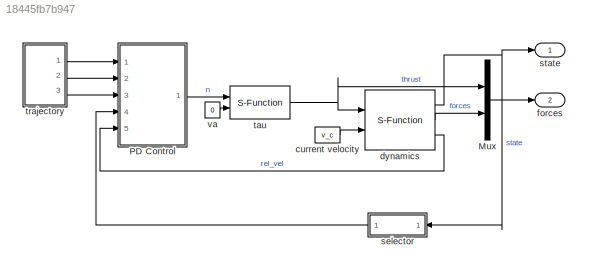
MODEL slx_18445fb7b947
KIND model
CONFIG AbsTol = auto
CONFIG EnableMultiTasking = off
CONFIG FixedStep = mdl.tStep
CONFIG MaxStep = auto
CONFIG MinStep = auto
CONFIG RelTol = 1e-3
CONFIG SampleTimeConstraint = Unconstrained
CONFIG Solver = ode4
CONFIG SolverName = ode4
CONFIG StartTime = 0.0
CONFIG StopTime = 10.0
BLOCK [Mux] Mux
  DisplayOption = bar
  Inputs = [6,18]
  Ports = [2, 1]
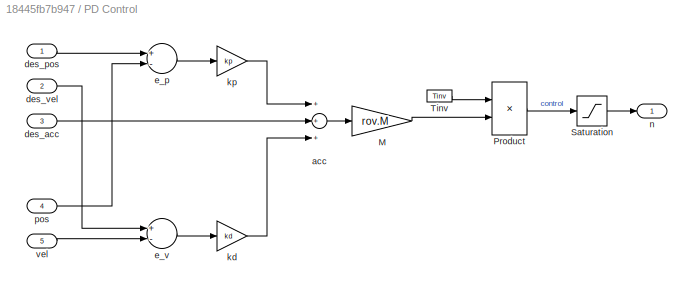
BLOCK [SubSystem] PD Control
  Ports = [5, 1]
  RequestExecContextInheritance = off
  Variant = off
BLOCK [Gain] PD Control/M
  Gain = rov.M
  Multiplication = Matrix(K*u)
  OutDataTypeStr = Inherit: Inherit via internal rule
  ParamDataTypeStr = Inherit: Inherit via internal rule
  SaturateOnIntegerOverflow = off
BLOCK [Product] PD Control/Product
  InputSameDT = off
  Multiplication = Matrix(*)
  OutDataTypeStr = Inherit: Inherit via internal rule
  Ports = [2, 1]
  RndMeth = Floor
  SaturateOnIntegerOverflow = off
BLOCK [Saturate] PD Control/Saturation
  InputPortMap = u0
  LowerLimit = -n_max
  Ports = [1, 1]
  UpperLimit = n_max
BLOCK [Constant] PD Control/Tinv
  Value = Tinv
  VectorParams1D = off
BLOCK [Sum] PD Control/acc
  InputSameDT = off
  Inputs = +++
  OutDataTypeStr = Inherit: Inherit via internal rule
  Ports = [3, 1]
  SaturateOnIntegerOverflow = off
BLOCK [Inport] PD Control/des_acc
  IconDisplay = Port number
  Port = 3
BLOCK [Inport] PD Control/des_pos
  IconDisplay = Port number
BLOCK [Inport] PD Control/des_vel
  IconDisplay = Port number
  Port = 2
BLOCK [Sum] PD Control/e_p
  InputSameDT = off
  Inputs = +-
  OutDataTypeStr = Inherit: Inherit via internal rule
  Ports = [2, 1]
  SaturateOnIntegerOverflow = off
BLOCK [Sum] PD Control/e_v
  InputSameDT = off
  Inputs = +-
  OutDataTypeStr = Inherit: Inherit via internal rule
  Ports = [2, 1]
  SaturateOnIntegerOverflow = off
BLOCK [Gain] PD Control/kd
  Gain = kd
  OutDataTypeStr = Inherit: Inherit via internal rule
  ParamDataTypeStr = Inherit: Inherit via internal rule
  SaturateOnIntegerOverflow = off
BLOCK [Gain] PD Control/kp
  Gain = kp
  OutDataTypeStr = Inherit: Inherit via internal rule
  ParamDataTypeStr = Inherit: Inherit via internal rule
  SaturateOnIntegerOverflow = off
BLOCK [Outport] PD Control/n
  IconDisplay = Port number
BLOCK [Inport] PD Control/pos
  IconDisplay = Port number
  Port = 4
BLOCK [Inport] PD Control/vel
  IconDisplay = Port number
  Port = 5
BLOCK [Constant] current velocity
  Value = v_c
BLOCK [S-Function] dynamics
  EnableBusSupport = off
  FunctionName = uuv_dynamics
  Parameters = rov.weight,rov.buoyancy,rov.G,rov.B,ics,rov.inv_mass',rov.M_A',rov.M_RB',rov.D_L',rov.D_q'
  Ports = [2, 3]
  SFcnIsStateOwnerBlock = off
  SFunctionDeploymentMode = off
BLOCK [Outport] forces
  IconDisplay = Port number
  Port = 2
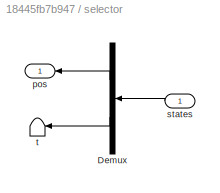
BLOCK [SubSystem] selector
  Ports = [1, 1]
  RequestExecContextInheritance = off
  Variant = off
BLOCK [Demux] selector/Demux
  DisplayOption = bar
  Outputs = [6,6]
  Ports = [1, 2]
BLOCK [Outport] selector/pos
  IconDisplay = Port number
BLOCK [Inport] selector/states
  IconDisplay = Port number
BLOCK [Terminator] selector/t
BLOCK [Outport] state
  IconDisplay = Port number
BLOCK [S-Function] tau
  EnableBusSupport = off
  FunctionName = rov_thrust
  Parameters = rov.density,rov.prop_diam,rov.K_T,rov.theta,rov.T'
  Ports = [2, 1]
  SFcnIsStateOwnerBlock = off
  SFunctionDeploymentMode = off
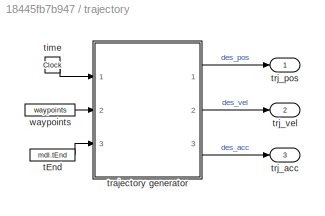
BLOCK [SubSystem] trajectory
  Ports = [0, 3]
  RequestExecContextInheritance = off
  Variant = off
BLOCK [Constant] trajectory/tEnd
  Value = mdl.tEnd
BLOCK [Clock] trajectory/time
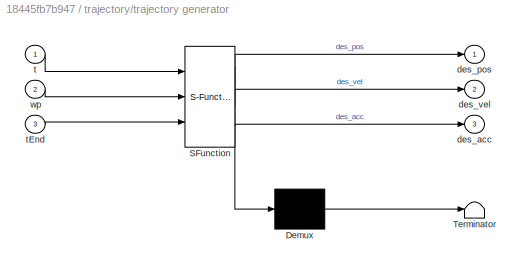
BLOCK [SubSystem] trajectory/trajectory generator
  ErrorFcn = Stateflow.Translate.translate
  PermitHierarchicalResolution = ExplicitOnly
  Ports = [3, 3]
  RequestExecContextInheritance = off
  SFBlockType = MATLAB Function
  TreatAsAtomicUnit = on
  Variant = off
BLOCK [Demux] trajectory/trajectory generator/ Demux 
  Outputs = 1
  Ports = [1, 1]
BLOCK [S-Function] trajectory/trajectory generator/ SFunction 
  EnableBusSupport = on
  FunctionName = sf_sfun
  PortCounts = [3 4]
  Ports = [3, 4]
  SFcnIsStateOwnerBlock = off
  SFunctionDeploymentMode = off
  Tag = Stateflow S-Function rovSim_trj 1
BLOCK [Terminator] trajectory/trajectory generator/ Terminator 
BLOCK [Outport] trajectory/trajectory generator/des_acc
  IconDisplay = Port number
  Port = 3
BLOCK [Outport] trajectory/trajectory generator/des_pos
  IconDisplay = Port number
BLOCK [Outport] trajectory/trajectory generator/des_vel
  IconDisplay = Port number
  Port = 2
BLOCK [Inport] trajectory/trajectory generator/t
  IconDisplay = Port number
BLOCK [Inport] trajectory/trajectory generator/tEnd
  IconDisplay = Port number
  Port = 3
BLOCK [Inport] trajectory/trajectory generator/wp
  IconDisplay = Port number
  Port = 2
BLOCK [Outport] trajectory/trj_acc
  IconDisplay = Port number
  Port = 3
BLOCK [Outport] trajectory/trj_pos
  IconDisplay = Port number
BLOCK [Outport] trajectory/trj_vel
  IconDisplay = Port number
  Port = 2
BLOCK [Constant] trajectory/waypoints
  Value = waypoints
BLOCK [Constant] va
  Value = 0
LINE Mux:1 -> forces:1
LINE PD Control/M:1 -> PD Control/Product:2
LINE PD Control/Product:1 -> PD Control/Saturation:1
LINE PD Control/Saturation:1 -> PD Control/n:1
LINE PD Control/Tinv:1 -> PD Control/Product:1
LINE PD Control/acc:1 -> PD Control/M:1
LINE PD Control/des_acc:1 -> PD Control/acc:2
LINE PD Control/des_pos:1 -> PD Control/e_p:1
LINE PD Control/des_vel:1 -> PD Control/e_v:1
LINE PD Control/e_p:1 -> PD Control/kp:1
LINE PD Control/e_v:1 -> PD Control/kd:1
LINE PD Control/kd:1 -> PD Control/acc:3
LINE PD Control/kp:1 -> PD Control/acc:1
LINE PD Control/pos:1 -> PD Control/e_p:2
LINE PD Control/vel:1 -> PD Control/e_v:2
LINE PD Control:1 -> tau:1
LINE current velocity:1 -> dynamics:2
NET dynamics:1 -> selector:1, state:1
LINE dynamics:2 -> Mux:2
LINE dynamics:3 -> PD Control:5
LINE selector/Demux:1 -> selector/pos:1
LINE selector/Demux:2 -> selector/t:1
LINE selector/states:1 -> selector/Demux:1
LINE selector:1 -> PD Control:4
NET tau:1 -> Mux:1, dynamics:1
LINE trajectory/tEnd:1 -> trajectory/trajectory generator:3
LINE trajectory/time:1 -> trajectory/trajectory generator:1
LINE trajectory/trajectory generator:1 -> trajectory/trj_pos:1
LINE trajectory/trajectory generator:2 -> trajectory/trj_vel:1
LINE trajectory/trajectory generator:3 -> trajectory/trj_acc:1
LINE trajectory/waypoints:1 -> trajectory/trajectory generator:2
LINE trajectory:1 -> PD Control:1
LINE trajectory:2 -> PD Control:2
LINE trajectory:3 -> PD Control:3
LINE va:1 -> tau:2
note: NET lines group one-source signal fan-out (src -> all destinations, sorted); 1:1 wires keep LINE
CHART trajectory/trajectory generator states=1 transitions=1
  STATE_LABEL 'eML_blk_kernel()'
  STATE_LABEL 'SCRIPT:\nfunction [des_pos,des_vel,des_acc] = fcn(t,wp,tEnd)\n% fcn.m      <email>      09/10/2017\n%%%%%%%%%%%%%%%%%%%%%%%%%%%%%%%%%%%%%%%%%%%%%%%%%%%%%%%%%%%%%%%%%%%%%%%%%%%\n% This function returns the (transverse and angular) acceleration, velocity\n% and position of the desired trajectory.\n%%%%%%%%%%%%%%%%%%%%%%%%%%%%%%%%%%%%%%%%%%%%%%%%%%%%%%%%%%%%%%%%%%%%%%%%%%%\n\n%% Initialize output size:\ndes_p...<+445ch>'
